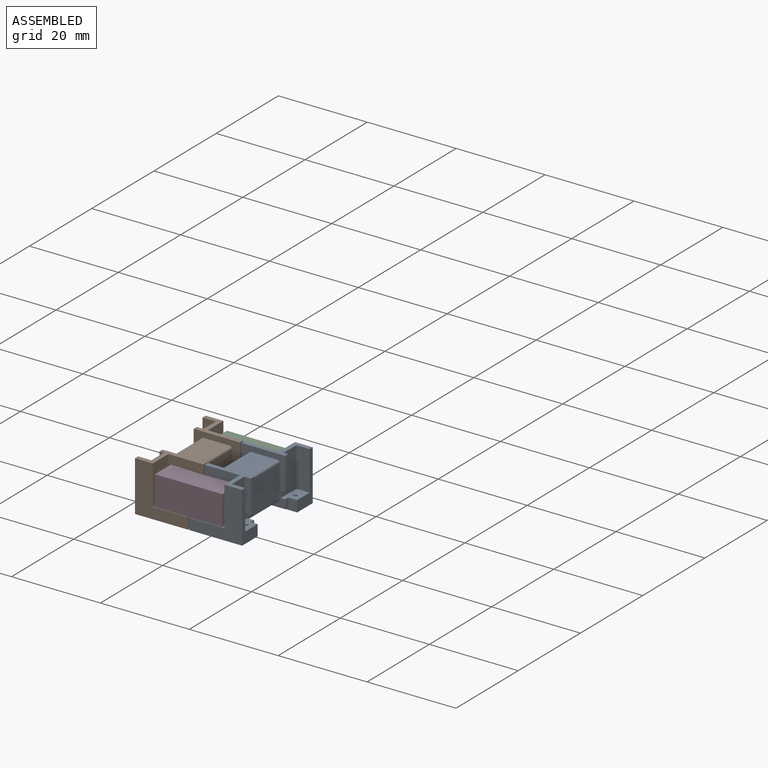
[diagram: assembled view]
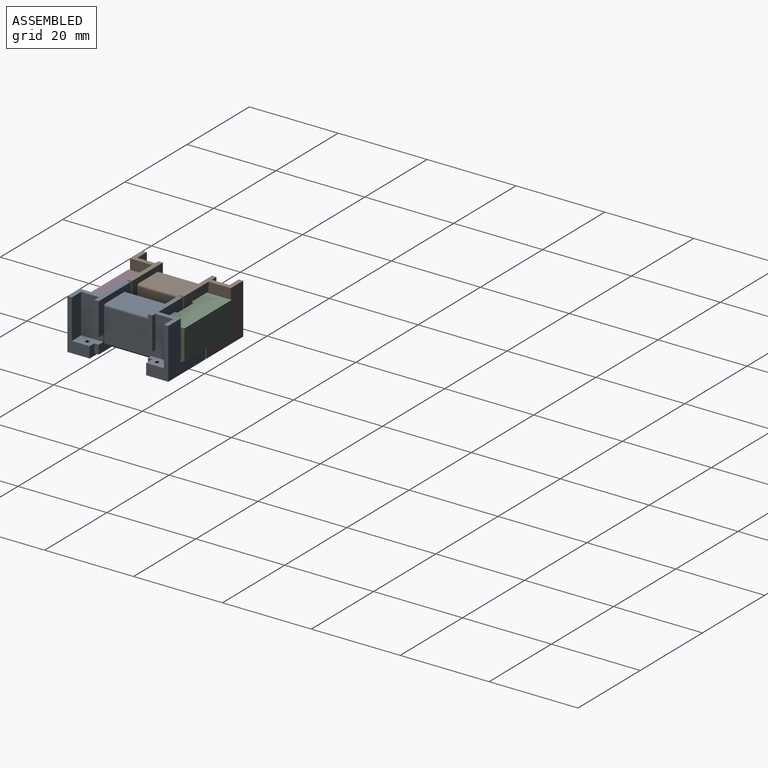
[diagram: assembled view, second angle]
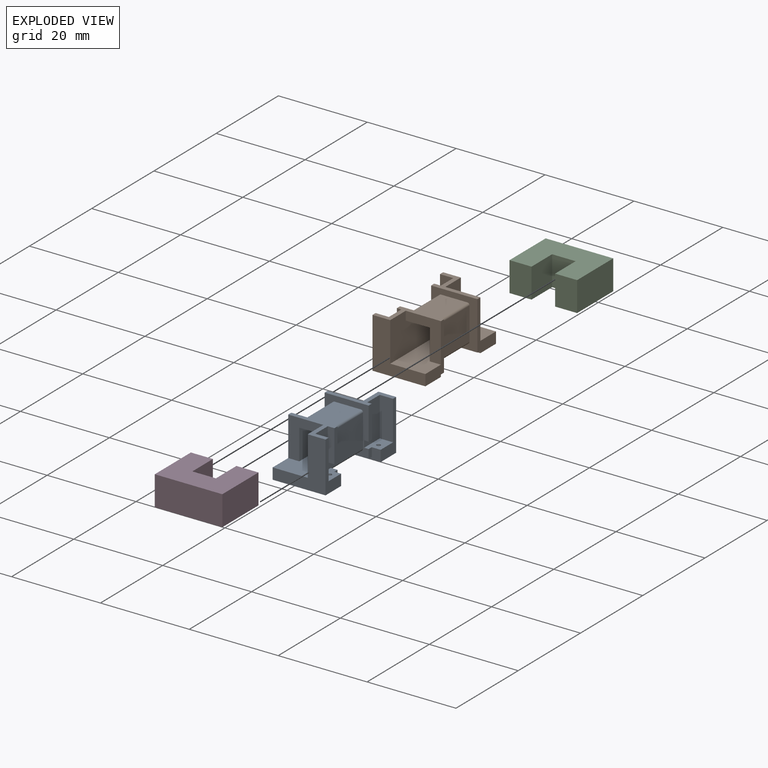
[diagram: exploded view]
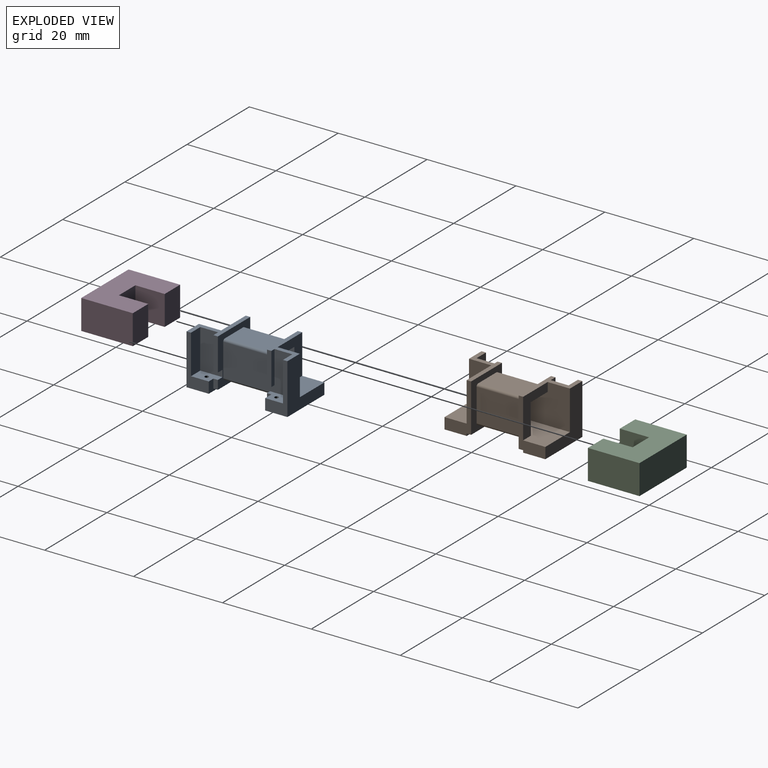
[diagram: exploded view, second angle]
ASSEMBLY  parts=4 mates=3
PART A: 46 faces, bbox 11.9x22.7x11.4 mm
  f0: plane 7.35x1.5mm, normal (0,-1,0), area 11mm2, adj f19,f22,f35,f41
  f1: plane 2x1mm, normal (1,0,0), area 2mm2, adj f3,f9,f21,f31
  f2: plane 7.35x1mm, normal (0,1,0), area 7.3mm2, adj f4,f6,f23,f40
  f3: plane 10.85x10.4mm, normal (0,1,0), area 53.2mm2, adj f1,f9,f11,f12,f13,f14,f19,f20
  f4: plane 7.35x1mm, normal (1,0,0), area 7.3mm2, adj f2,f5,f23,f40
  f5: plane 10.85x9.9mm, normal (0,-1,0), area 48.5mm2, adj f4,f6,f11,f12,f13,f14,f18,f23
  f6: plane 8.85x5mm, normal (1,0,0), area 36.9mm2, adj f2,f5,f18,f23,f37,f40
  f7: plane 22.7x7.9mm, normal (0,0,1), area 147.6mm2, adj f8,f10,f15,f17,f20,f26,f28,f33
  f8: plane 8.85x7.9mm, normal (0,1,0), area 32.9mm2, adj f7,f15,f16,f17,f23,f26
  f9: plane 5x3mm, normal (0,0,1), area 12.9mm2, adj f1,f3,f31,f34,f35,f36,f38
  f10: plane 8.85x7.9mm, normal (0,-1,0), area 32.9mm2, adj f7,f15,f16,f17,f19,f20
  f11: plane 10.7x7.35mm, normal (-1,0,0), area 78.6mm2, adj f3,f5,f42,f45
  f12: plane 10.7x5.9mm, normal (0,0,-1), area 63.1mm2, adj f3,f5,f42,f43
  f13: plane 10.7x7.35mm, normal (1,0,0), area 78.6mm2, adj f3,f5,f43,f44
  f14: plane 10.7x5.9mm, normal (0,0,1), area 63.1mm2, adj f3,f5,f44,f45
  f15: plane 12.7x6.85mm, normal (1,0,0), area 87mm2, adj f7,f8,f10,f16
  f16: plane 12.7x5.4mm, normal (0,0,-1), area 68.6mm2, adj f8,f10,f15,f17
  f17: plane 22.7x8.85mm, normal (-1,0,0), area 175.5mm2, adj f7,f8,f10,f16,f19,f23,f28,f33
  f18: plane 5x3mm, normal (0,0,1), area 12.4mm2, adj f5,f6,f24,f27,f30,f37,f39
  f19: plane 11.9x6mm, normal (0,0,1), area 18.4mm2, adj f0,f3,f10,f17,f20,f22,f33,f34
  f20: plane 11.35x6mm, normal (-1,0,0), area 23.3mm2, adj f3,f7,f10,f19,f21,f31,f32,f33
  f21: plane 10.4x1mm, normal (0,0,-1), area 10.4mm2, adj f1,f3,f20,f31
  f22: plane 7.35x1mm, normal (1,0,0), area 7.3mm2, adj f0,f3,f19,f41
  f23: plane 11.9x6mm, normal (0,0,1), area 17.9mm2, adj f2,f4,f5,f6,f8,f17,f26,f28
  f24: plane 2x1mm, normal (1,0,0), area 2mm2, adj f5,f18,f25,f27
  f25: plane 9.9x1mm, normal (0,0,-1), area 9.9mm2, adj f5,f24,f26,f27
  f26: plane 11.35x6mm, normal (-1,0,0), area 23.3mm2, adj f5,f7,f8,f23,f25,f27,f28,f29
  f27: plane 11.9x2.5mm, normal (0,-1,0), area 9.9mm2, adj f18,f24,f25,f26,f29,f30
  f28: plane 11.9x11.35mm, normal (0,1,0), area 65.1mm2, adj f7,f17,f23,f26,f29,f30
  f29: plane 11.9x5mm, normal (0,0,-1), area 58.9mm2, adj f26,f27,f28,f30,f39
  f30: plane 11.35x5mm, normal (1,0,0), area 21.4mm2, adj f18,f23,f27,f28,f29,f37
  f31: plane 11.9x2.5mm, normal (0,1,0), area 8.9mm2, adj f1,f9,f20,f21,f32,f34
  f32: plane 11.9x5mm, normal (0,0,-1), area 58.9mm2, adj f20,f31,f33,f34,f38
  f33: plane 11.9x11.35mm, normal (0,-1,0), area 65.1mm2, adj f7,f17,f19,f20,f32,f34
  f34: plane 11.35x5mm, normal (1,0,0), area 21.3mm2, adj f9,f19,f31,f32,f33,f36
  f35: plane 8.85x5mm, normal (1,0,0), area 36.9mm2, adj f0,f3,f9,f19,f36,f41
  f36: plane 8.85x3mm, normal (0,1,0), area 26.5mm2, adj f9,f19,f34,f35
  f37: plane 8.85x3mm, normal (0,-1,0), area 26.5mm2, adj f6,f18,f23,f30
  f38: cylinder r=0.45mm len=2.5mm, axis (0,0,1), area 7.1mm2, adj f9,f32
  f39: cylinder r=0.45mm len=2.5mm, axis (0,0,1), area 7.1mm2, adj f18,f29
  f40: plane 1x1mm, normal (0,0,-1), area 1mm2, adj f2,f4,f5,f6
  f41: plane 1.5x1mm, normal (0,0,-1), area 1.5mm2, adj f0,f3,f22,f35
  f42: cylinder r=0.5mm len=10.7mm, axis (0,1,0), area 8.4mm2, adj f3,f5,f11,f12
  f43: cylinder r=0.5mm len=10.7mm, axis (0,-1,0), area 8.4mm2, adj f3,f5,f12,f13
  f44: cylinder r=0.5mm len=10.7mm, axis (0,1,0), area 8.4mm2, adj f3,f5,f13,f14
  f45: cylinder r=0.5mm len=10.7mm, axis (0,-1,0), area 8.4mm2, adj f3,f5,f11,f14
PART B: same geometry as A
PART C: 10 faces, bbox 15.2x11.6x6.7 mm
  f0: plane 11.6x6.7mm, normal (-1,0,0), area 77.7mm2, adj f1,f7,f8,f9
  f1: plane 6.7x4.95mm, normal (0,-1,0), area 33.2mm2, adj f0,f2,f8,f9
  f2: plane 6.7x6.6mm, normal (1,0,0), area 44.2mm2, adj f1,f3,f8,f9
  f3: plane 6.7x5.3mm, normal (0,-1,0), area 35.5mm2, adj f2,f4,f8,f9
  f4: plane 6.7x6.6mm, normal (-1,0,0), area 44.2mm2, adj f3,f5,f8,f9
  f5: plane 6.7x4.95mm, normal (0,-1,0), area 33.2mm2, adj f4,f6,f8,f9
  f6: plane 11.6x6.7mm, normal (1,0,0), area 77.7mm2, adj f5,f7,f8,f9
  f7: plane 15.2x6.7mm, normal (0,1,0), area 101.8mm2, adj f0,f6,f8,f9
  f8: plane 15.2x11.6mm, normal (0,0,1), area 141.3mm2, adj f0,f1,f2,f3,f4,f5,f6,f7
  f9: plane 15.2x11.6mm, normal (0,0,-1), area 141.3mm2, adj f0,f1,f2,f3,f4,f5,f6,f7
PART D: same geometry as C
PLACE A t=(-2.43,-0.49,3.1)mm fixed
PLACE B rot(axis=(0,0,1),180deg) t=(-6.23,12.21,3.1)mm
PLACE C t=(-11.93,6.11,3.93)mm
PLACE D rot(axis=(0,0,1),180deg) t=(3.27,6.11,3.93)mm
MATE fastened D.f3 <-> B.f8  axis (0,1,0) through (-6.98,-0.49,7.28)mm
MATE fastened A.f10 <-> D.f3  axis (0,-1,0) through (-1.68,-0.49,7.28)mm
MATE fastened D.f5 <-> C.f1  axis (0,1,0) through (-9.45,6.11,7.28)mm
